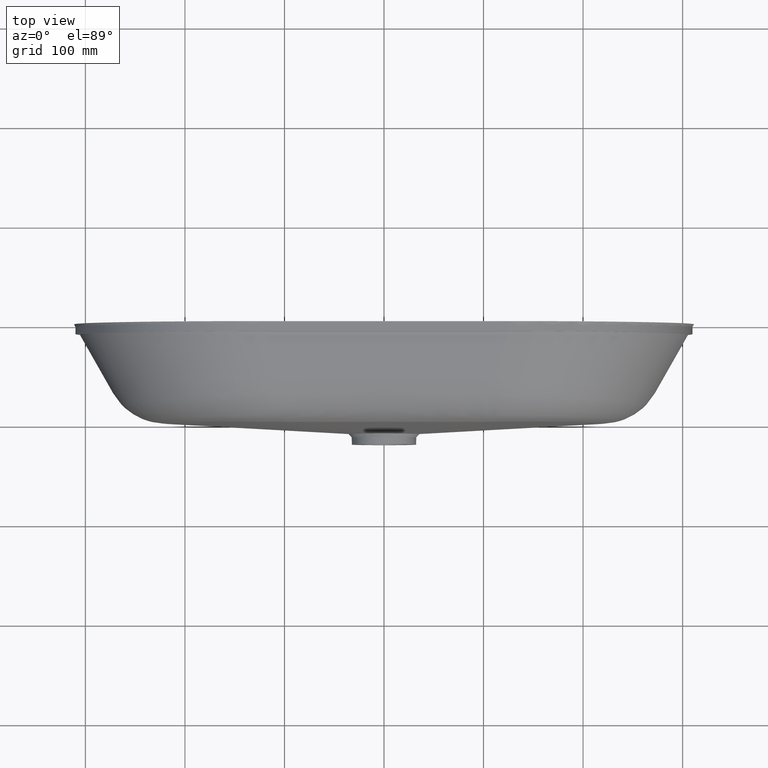
[diagram: clean part render]
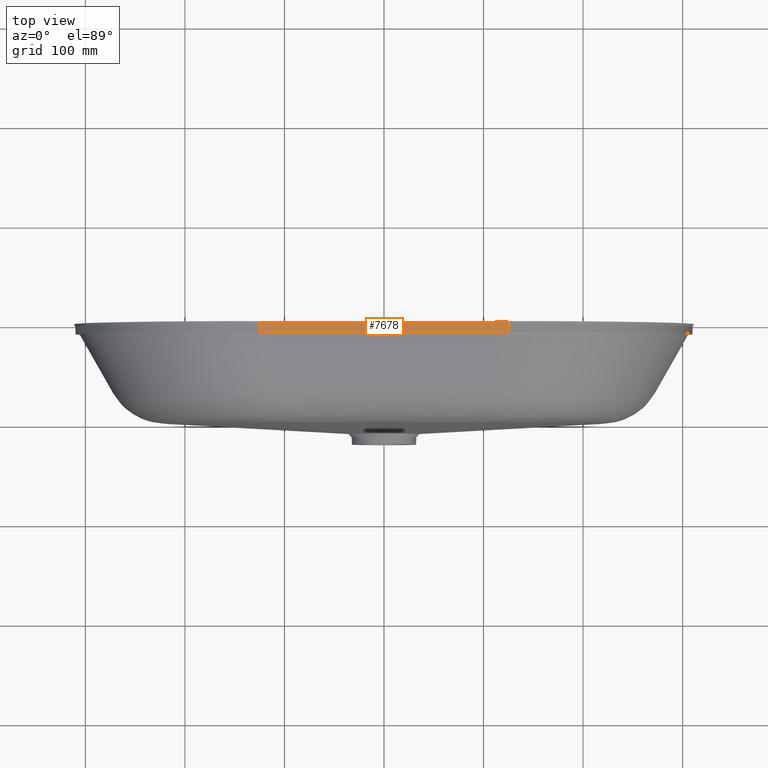
[diagram: same view with one face highlighted and labeled with its STEP entity id]
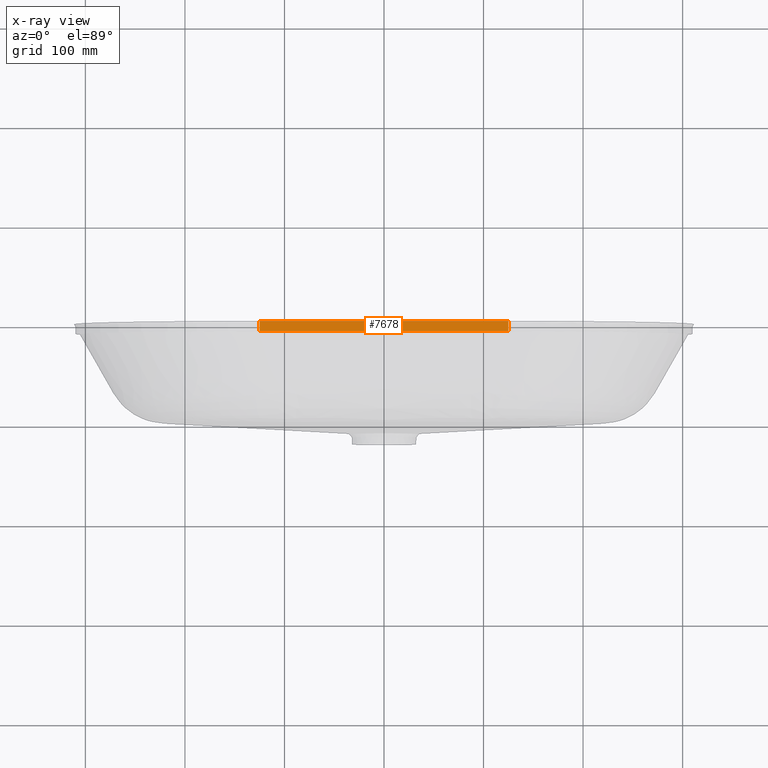
[diagram: x-ray of the same camera — body ghosted, the highlighted face saturated]
A machine part, top view. The second image highlights one B-rep face of the part: STEP entity #7678.
The next image is the same camera in x-ray: the body ghosted, the highlighted face saturated — about 0% of this face is hidden behind the body in this view.
In plain terms, the highlighted planar face has unit normal (0, 0, 1).
Its self-contained STEP definition (entity closure, byte-faithful):
#437 = EDGE_CURVE ( 'NONE', #3816, #6593, #2274, .T. ) ;
#539 = CARTESIAN_POINT ( 'NONE',  ( 125.0000000000000300, 0.0000000000000000000, 185.0000000000000300 ) ) ;
#943 = DIRECTION ( 'NONE',  ( 0.0000000000000000000, 0.0000000000000000000, 1.000000000000000000 ) ) ;
#1766 = CARTESIAN_POINT ( 'NONE',  ( -125.0000000000000300, -10.00000000000000000, 185.0000000000000300 ) ) ;
#1945 = FACE_OUTER_BOUND ( 'NONE', #8024, .T. ) ;
#2020 = CARTESIAN_POINT ( 'NONE',  ( -125.0000000000000300, -10.00000000000000000, 185.0000000000000300 ) ) ;
#2274 = LINE ( 'NONE', #8312, #13352 ) ;
#2295 = VECTOR ( 'NONE', #3055, 1000.000000000000000 ) ;
#2445 = VECTOR ( 'NONE', #11038, 1000.000000000000000 ) ;
#2471 = ORIENTED_EDGE ( 'NONE', *, *, #437, .F. ) ;
#3055 = DIRECTION ( 'NONE',  ( 0.0000000000000000000, 1.000000000000000000, 0.0000000000000000000 ) ) ;
#3300 = EDGE_CURVE ( 'NONE', #5302, #6593, #9831, .T. ) ;
#3528 = CARTESIAN_POINT ( 'NONE',  ( -125.0000000000000300, -10.00000000000000000, 185.0000000000000300 ) ) ;
#3541 = ORIENTED_EDGE ( 'NONE', *, *, #7713, .F. ) ;
#3779 = VECTOR ( 'NONE', #11231, 1000.000000000000000 ) ;
#3816 = VERTEX_POINT ( 'NONE', #8997 ) ;
#4747 = EDGE_CURVE ( 'NONE', #9670, #5302, #5280, .T. ) ;
#4797 = CARTESIAN_POINT ( 'NONE',  ( 125.0000000000000300, -10.00000000000000000, 185.0000000000000300 ) ) ;
#5214 = CARTESIAN_POINT ( 'NONE',  ( -125.0000000000000300, -10.00000000000000000, 185.0000000000000300 ) ) ;
#5280 = LINE ( 'NONE', #3528, #2445 ) ;
#5302 = VERTEX_POINT ( 'NONE', #11405 ) ;
#6248 = DIRECTION ( 'NONE',  ( 1.000000000000000000, 0.0000000000000000000, 0.0000000000000000000 ) ) ;
#6593 = VERTEX_POINT ( 'NONE', #539 ) ;
#7318 = LINE ( 'NONE', #2020, #2295 ) ;
#7678 = ADVANCED_FACE ( 'NONE', ( #1945 ), #9488, .T. ) ;
#7713 = EDGE_CURVE ( 'NONE', #9670, #3816, #7318, .T. ) ;
#8024 = EDGE_LOOP ( 'NONE', ( #2471, #3541, #11508, #9854 ) ) ;
#8312 = CARTESIAN_POINT ( 'NONE',  ( -125.0000000000000300, 0.0000000000000000000, 185.0000000000000300 ) ) ;
#8444 = DIRECTION ( 'NONE',  ( 1.000000000000000000, 0.0000000000000000000, -0.0000000000000000000 ) ) ;
#8997 = CARTESIAN_POINT ( 'NONE',  ( -125.0000000000000300, 0.0000000000000000000, 185.0000000000000300 ) ) ;
#9488 = PLANE ( 'NONE',  #12244 ) ;
#9670 = VERTEX_POINT ( 'NONE', #1766 ) ;
#9831 = LINE ( 'NONE', #4797, #3779 ) ;
#9854 = ORIENTED_EDGE ( 'NONE', *, *, #3300, .T. ) ;
#11038 = DIRECTION ( 'NONE',  ( 1.000000000000000000, 0.0000000000000000000, 0.0000000000000000000 ) ) ;
#11231 = DIRECTION ( 'NONE',  ( 0.0000000000000000000, 1.000000000000000000, 0.0000000000000000000 ) ) ;
#11405 = CARTESIAN_POINT ( 'NONE',  ( 125.0000000000000300, -10.00000000000000000, 185.0000000000000300 ) ) ;
#11508 = ORIENTED_EDGE ( 'NONE', *, *, #4747, .T. ) ;
#12244 = AXIS2_PLACEMENT_3D ( 'NONE', #5214, #943, #8444 ) ;
#13352 = VECTOR ( 'NONE', #6248, 1000.000000000000000 ) ;